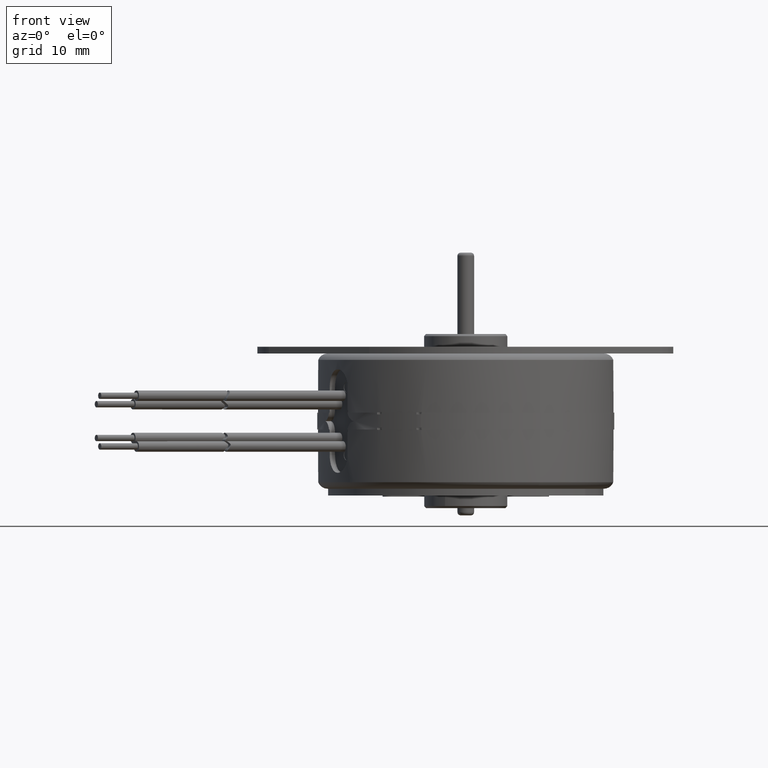
[diagram: clean part render]
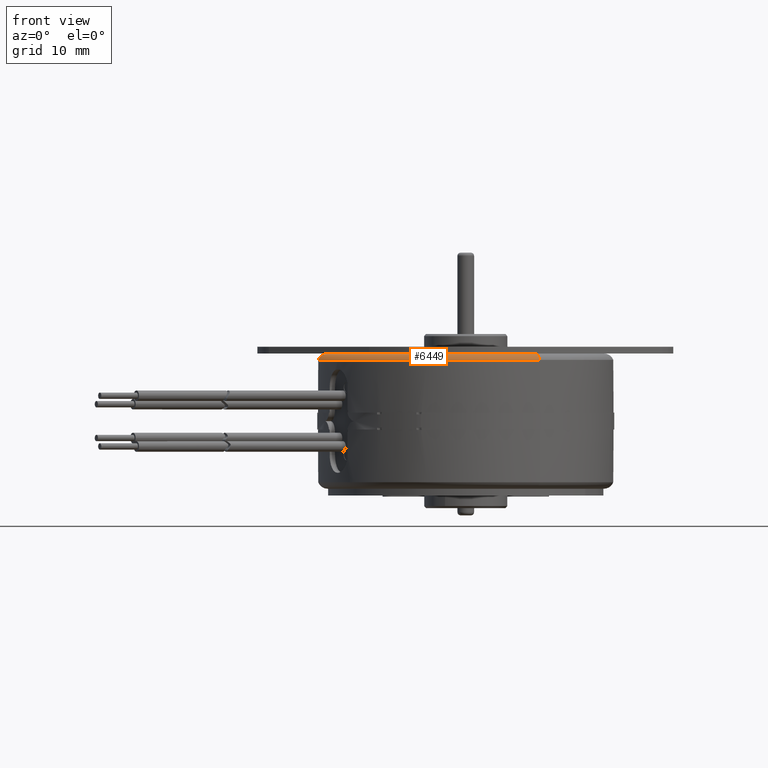
[diagram: same view with one face highlighted and labeled with its STEP entity id]
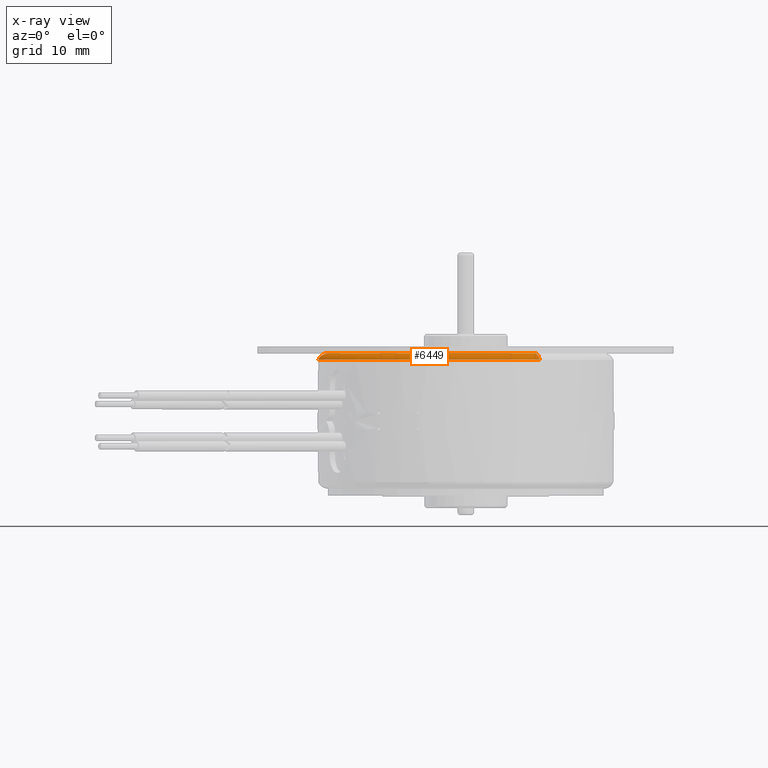
[diagram: x-ray of the same camera — body ghosted, the highlighted face saturated]
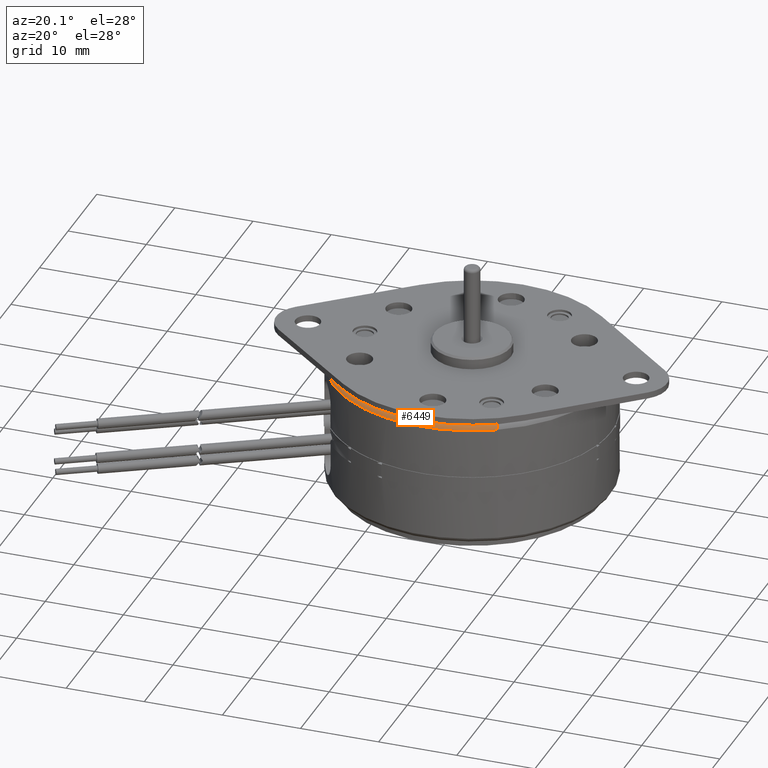
[diagram: same view with one face highlighted and labeled with its STEP entity id]
A machine part, front view. The second image highlights one B-rep face of the part: STEP entity #6449.
The next image is the same camera in x-ray: the body ghosted, the highlighted face saturated — about 0% of this face is hidden behind the body in this view.
A second angle (auxiliary view) of the same face is appended — the face is thin or edge-on in the first view.
In plain terms, the highlighted toroidal blend (fillet) surface has major radius 16.6497 mm and minor (blend) radius 1.1938 mm.
Its self-contained STEP definition (entity closure, byte-faithful):
#1920=CARTESIAN_POINT('',(0.E0,0.E0,2.895227116419E-1));
#1921=DIRECTION('',(0.E0,0.E0,-1.E0));
#1922=DIRECTION('',(5.E-1,-8.660254037844E-1,0.E0));
#1923=AXIS2_PLACEMENT_3D('',#1920,#1921,#1922);
#1996=CARTESIAN_POINT('',(0.E0,0.E0,3.2E-1));
#1997=DIRECTION('',(0.E0,0.E0,-1.E0));
#1998=DIRECTION('',(4.999999999998E-1,-8.660254037845E-1,0.E0));
#1999=AXIS2_PLACEMENT_3D('',#1996,#1997,#1998);
#2599=CARTESIAN_POINT('',(-3.277499999999E-1,5.676796521808E-1,2.73E-1));
#2600=DIRECTION('',(-8.660254037845E-1,-4.999999999998E-1,0.E0));
#2601=DIRECTION('',(0.E0,0.E0,1.E0));
#2602=AXIS2_PLACEMENT_3D('',#2599,#2600,#2601);
#2609=CARTESIAN_POINT('',(3.277500000001E-1,-5.676796521807E-1,2.73E-1));
#2610=DIRECTION('',(-8.660254037844E-1,-5.000000000001E-1,0.E0));
#2611=DIRECTION('',(4.680851063829E-1,-8.107471865213E-1,3.515470562105E-1));
#2612=AXIS2_PLACEMENT_3D('',#2609,#2610,#2611);
#3524=CARTESIAN_POINT('',(-3.277499999999E-1,5.676796521808E-1,3.2E-1));
#3525=CARTESIAN_POINT('',(3.277499999999E-1,-5.676796521808E-1,3.2E-1));
#3526=VERTEX_POINT('',#3524);
#3527=VERTEX_POINT('',#3525);
#3528=CARTESIAN_POINT('',(-3.497499999999E-1,6.057847699473E-1,
2.895227116419E-1));
#3529=VERTEX_POINT('',#3528);
#3530=CARTESIAN_POINT('',(3.4975E-1,-6.057847699472E-1,2.895227116419E-1));
#3531=VERTEX_POINT('',#3530);
#6435=CARTESIAN_POINT('',(0.E0,0.E0,2.73E-1));
#6436=DIRECTION('',(0.E0,0.E0,-1.E0));
#6437=DIRECTION('',(5.000000000001E-1,-8.660254037844E-1,0.E0));
#6438=AXIS2_PLACEMENT_3D('',#6435,#6436,#6437);
#6439=TOROIDAL_SURFACE('',#6438,6.555E-1,4.7E-2);
#6441=ORIENTED_EDGE('',*,*,#6440,.F.);
#6443=ORIENTED_EDGE('',*,*,#6442,.F.);
#6444=ORIENTED_EDGE('',*,*,#6140,.T.);
#6446=ORIENTED_EDGE('',*,*,#6445,.F.);
#6447=EDGE_LOOP('',(#6441,#6443,#6444,#6446));
#6448=FACE_OUTER_BOUND('',#6447,.F.);
#6449=ADVANCED_FACE('',(#6448),#6439,.T.);
#1924=CIRCLE('',#1923,6.995E-1);
#2000=CIRCLE('',#1999,6.555E-1);
#2603=CIRCLE('',#2602,4.7E-2);
#2613=CIRCLE('',#2612,4.7E-2);
#6140=EDGE_CURVE('',#3531,#3529,#1924,.T.);
#6440=EDGE_CURVE('',#3527,#3526,#2000,.T.);
#6442=EDGE_CURVE('',#3531,#3527,#2613,.T.);
#6445=EDGE_CURVE('',#3526,#3529,#2603,.T.);